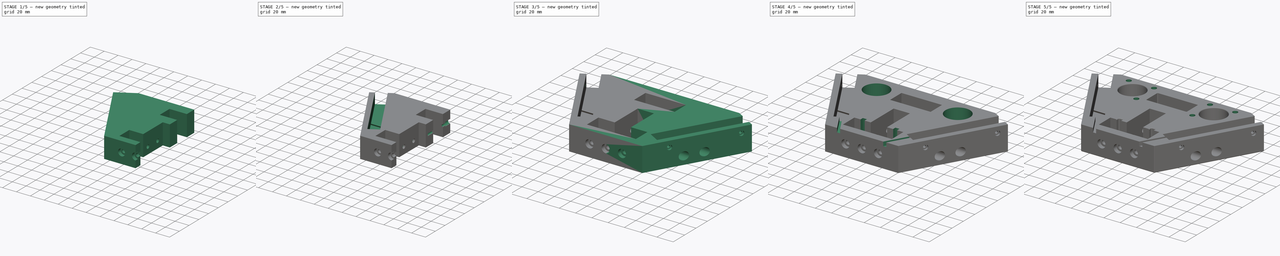
[diagram: build sequence overview — one tinted view per stage of 5, left to right]
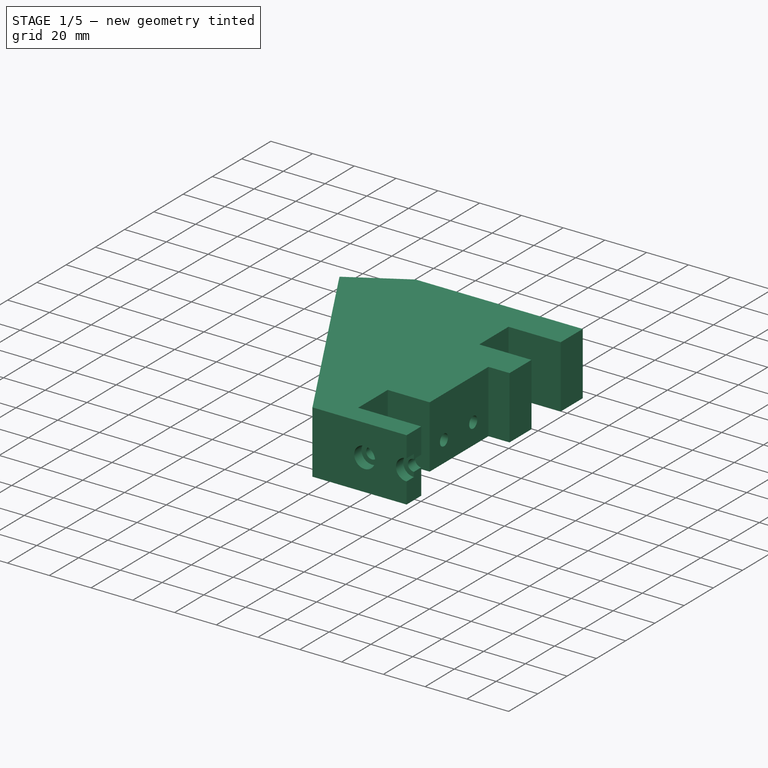
[diagram: stage 1 of 5 — iso view after this stage's code; geometry added in this stage tinted green]
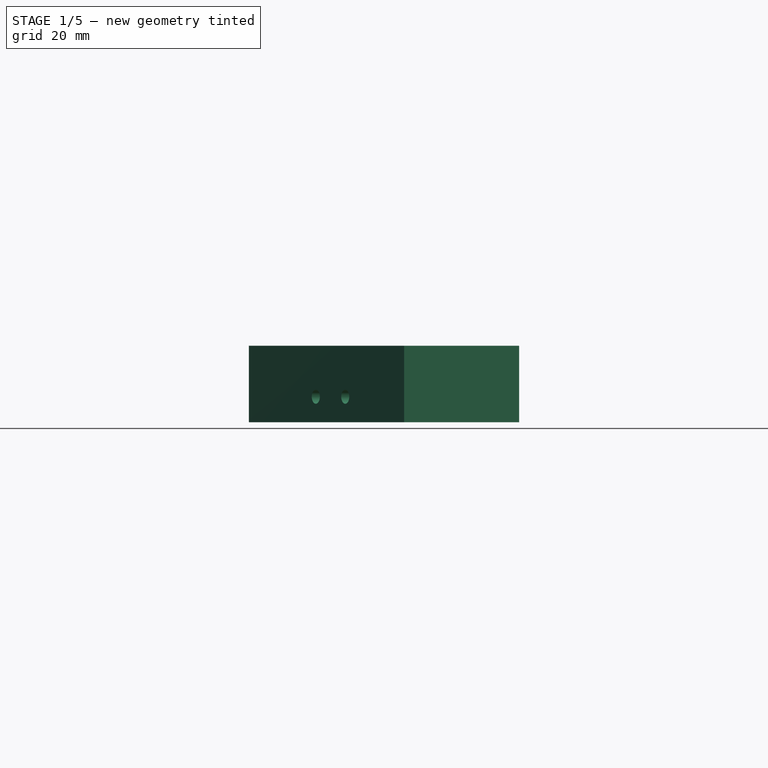
[diagram: stage 1 of 5 — front view after this stage's code; geometry added in this stage tinted green]
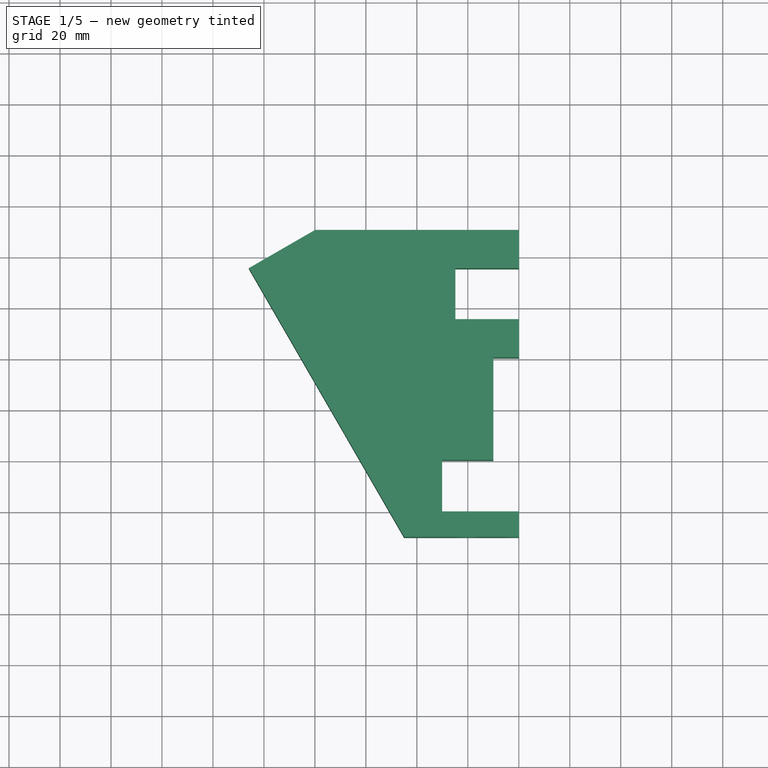
[diagram: stage 1 of 5 — top view after this stage's code; geometry added in this stage tinted green]
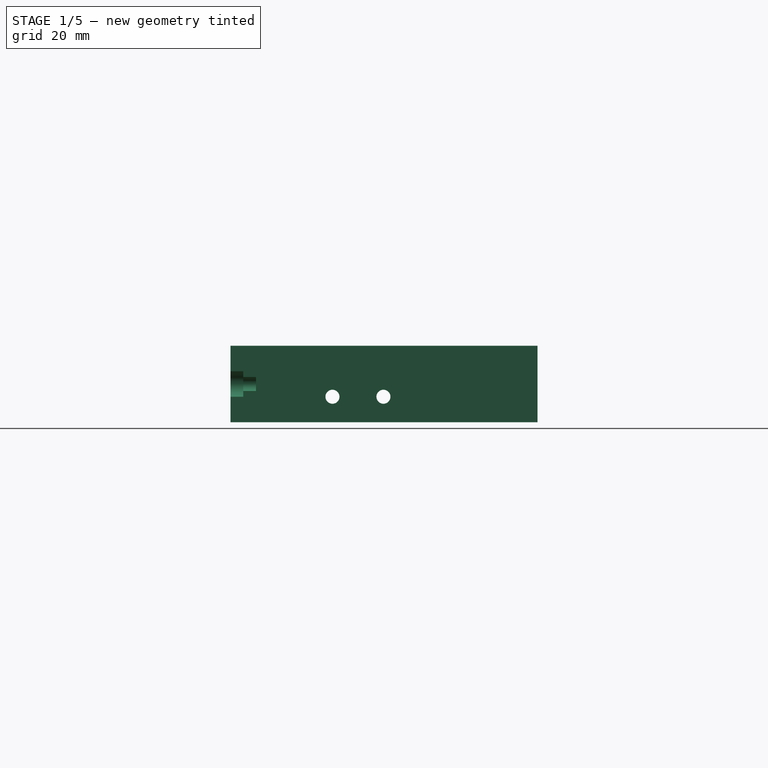
[diagram: stage 1 of 5 — right view after this stage's code; geometry added in this stage tinted green]
FCSTD DOCUMENT  (FreeCAD 2022.407R26244 +4693 (Git))
Label: topCorner
License: All rights reserved
LicenseURL: http://en.wikipedia.org/wiki/All_rights_reserved
objects: Sketcher::SketchObject×10, PartDesign::Hole×6, PartDesign::Mirrored×4, PartDesign::Pocket×3, PartDesign::Pad×1, PartDesign::Fillet×1, PartDesign::Body×1
note: 56 computed .brp shape members not serialized (recipe doc carries the construction recipe); baked Part::Feature solids carry a one-line shape summary decoded from their .brp

FEATURE [Sketcher::SketchObject] Sketch
  FullyConstrained = true
  MapMode = 5
  Support = -> [XY_Plane001]
  TreeRank = 0
  sketch-geometry (15):
    g0: LineSegment StartX=-10 StartY=60.4 StartZ=0 EndX=0.1 EndY=60.4 EndZ=0
    g1: LineSegment StartX=0.1 StartY=0 StartZ=0 EndX=-30.1 EndY=0 EndZ=0
    g2: LineSegment StartX=-30.1 StartY=0 StartZ=0 EndX=-30.1 EndY=20.2 EndZ=0
    g3: LineSegment StartX=-30.1 StartY=20.2 StartZ=0 EndX=-10 EndY=20.2 EndZ=0
    g4: LineSegment StartX=-10 StartY=20.2 StartZ=0 EndX=-10 EndY=60.4 EndZ=0
    g5: LineSegment StartX=-45 StartY=-10 StartZ=0 EndX=0.1 EndY=-10 EndZ=0
    g6: LineSegment StartX=-45 StartY=-10 StartZ=0 EndX=-105.881 EndY=95.4486 EndZ=0
    g7: LineSegment StartX=-105.881 StartY=95.4486 StartZ=0 EndX=-79.9 EndY=110.449 EndZ=0
    g8: LineSegment StartX=-79.9 StartY=110.449 StartZ=0 EndX=0.1 EndY=110.449 EndZ=0
    g9: LineSegment StartX=-24.9 StartY=95.4 StartZ=0 EndX=0.1 EndY=95.4 EndZ=0
    g10: LineSegment StartX=0.1 StartY=75.4 StartZ=0 EndX=-24.9 EndY=75.4 EndZ=0
    g11: LineSegment StartX=-24.9 StartY=75.4 StartZ=0 EndX=-24.9 EndY=95.4 EndZ=0
    g12: LineSegment StartX=0.1 StartY=110.449 StartZ=0 EndX=0.1 EndY=95.4 EndZ=0
    g13: LineSegment StartX=0.1 StartY=75.4 StartZ=0 EndX=0.1 EndY=60.4 EndZ=0
    g14: LineSegment StartX=0.1 StartY=0 StartZ=0 EndX=0.1 EndY=-10 EndZ=0
  constraints (46):
    c: Horizontal(g0)
    c: Horizontal(g1)
    c: Coincident(g1,g2)
    c: Vertical(g2)
    c: Coincident(g2,g3)
    c: Horizontal(g3)
    c: Coincident(g3,g4)
    c: Coincident(g4,g0)
    c: Vertical(g4)
    c: DistanceX(g3,g3) = 20.1
    c: DistanceY(g4,g4) = 40.2
    c: DistanceY(g2,g2) = 20.2
    c: DistanceY(g1) = 0
    c: DistanceX(g1) = -30.1
    c: Horizontal(g5)
    c: Coincident(g5,g6)
    c: Angle(g5,g6) = 2.0944
    c: DistanceY(g5,g1) = 10
    c: DistanceX(g5,g1) = 14.9
    c: Coincident(g6,g7)
    c: Coincident(g7,g8)
    c: Horizontal(g8)
    c: Perpendicular(g6,g7)
    c: Coincident(g10,g11)
    c: Coincident(g11,g9)
    c: DistanceY(g11,g11) = 20
    c: DistanceY(g0,g10) = 15
    c: Vertical(g12)
    c: Coincident(g8,g12)
    c: PointOnObject(g0,g12)
    c: PointOnObject(g1,g12)
    c: Coincident(g5,g14)
    c: Coincident(g12,g9)
    c: Coincident(g13,g10)
    c: Tangent(g12,g13)
    c: PointOnObject(g13,g0)
    c: PointOnObject(g14,g1)
    c: Tangent(g13,g14)
    c: DistanceX(g10,g10) = 25
    c: DistanceX(g0,g0) = 10.1
    c: Horizontal(g10)
    c: Horizontal(g9)
    c: Vertical(g11)
    c: Distance(g7) = 30  'top_corner_extrusion_face_width'
    c: Angle(g7,g8) = 2.61799
    c: DistanceX(g8,g8) = 80  'topCorner_flat_width'
FEATURE [PartDesign::Pad] Pad
  AddSubType = 0
  CheckUpToFaceLimits = true
  ClaimChildren = false
  Direction = (0,0,1)
  Fit = 0
  FitJoin = 0
  InnerFit = 0
  InnerFitJoin = 0
  InnerTaperAngle = 0
  InnerTaperAngleRev = 0
  Length = 30
  Length2 = 100
  NewSolid = false
  Profile = -> Sketch
  Refine = true
  Suppress = false
  TreeRank = 0
  Type = 0
  _ProfileBasedVersion = 0
FEATURE [Sketcher::SketchObject] Sketch001
  FullyConstrained = true
  MapMode = 5
  Placement = pos=(0,-10,0) rot=(1,0,0;1.5708rad)
  Support = -> [Pad]
  TreeRank = 0
  sketch-geometry (2):
    g0: Circle CenterX=0 CenterY=15 CenterZ=0 NormalX=0 NormalY=0 NormalZ=1 AngleXU=0 Radius=2.5
    g1: Circle CenterX=-20 CenterY=15 CenterZ=0 NormalX=0 NormalY=0 NormalZ=1 AngleXU=0 Radius=2.5
  constraints (6):
    c: PointOnObject(g0,g-2)
    c: Radius(g1) = 2.5
    c: Equal(g1,g0)
    c: DistanceX(g1,g0) = 20
    c: DistanceY(g0) = 15
    c: Horizontal(g0,g1)
FEATURE [PartDesign::Hole] Hole
  AddSubType = 1
  BaseFeature = -> Pad
  ClaimChildren = false
  CustomThreadClearance = 0
  Depth = 25
  DepthType = 0
  Diameter = 5.5
  DrillForDepth = false
  DrillPoint = 1
  DrillPointAngle = 118
  Fit = 0
  FitJoin = 0
  HoleCutCountersinkAngle = 90
  HoleCutCustomValues = false
  HoleCutDepth = 5
  HoleCutDiameter = 10
  HoleCutType = 1
  InnerFit = 0
  InnerFitJoin = 0
  ModelThread = false
  NewSolid = false
  Profile = -> Sketch001
  Refine = true
  Suppress = false
  Tapered = false
  TaperedAngle = 90
  ThreadClass = 0
  ThreadDepth = 23.5
  ThreadDepthType = 0
  ThreadDirection = 0
  ThreadFit = 0
  ThreadSize = 13
  ThreadType = 1
  Threaded = false
  TreeRank = 0
  UseCustomThreadClearance = false
  _ProfileBasedVersion = 0
FEATURE [Sketcher::SketchObject] Sketch002
  AttachmentOffset = pos=(20,30,-94) rot=(1,0,0;3.14159rad)
  FullyConstrained = true
  MapMode = 5
  Placement = pos=(-94,20,30) rot=(0.57735,0.57735,-0.57735;4.18879rad)
  Support = -> [YZ_Plane001]
  TreeRank = 0
  sketch-geometry (2):
    g0: Circle CenterX=10 CenterY=20 CenterZ=0 NormalX=0 NormalY=0 NormalZ=1 AngleXU=0 Radius=2.5
    g1: Circle CenterX=30 CenterY=20 CenterZ=0 NormalX=0 NormalY=0 NormalZ=1 AngleXU=0 Radius=2.5
  constraints (6):
    c: Radius(g1) = 2.5
    c: Equal(g1,g0)
    c: DistanceX(g0,g1) = 20
    c: DistanceY(g0) = 20
    c: DistanceX(g0) = 10
    c: Horizontal(g0,g1)
FEATURE [PartDesign::Hole] Hole001  label="Holes for M5 screws into 2040"
  AddSubType = 1
  BaseFeature = -> Hole
  ClaimChildren = false
  CustomThreadClearance = 0
  Depth = 25
  DepthType = 1
  Diameter = 5.5
  DrillForDepth = false
  DrillPoint = 0
  DrillPointAngle = 118
  Fit = 0
  FitJoin = 0
  HoleCutCountersinkAngle = 90
  HoleCutCustomValues = false
  HoleCutDepth = 3
  HoleCutDiameter = 10
  HoleCutType = 1
  InnerFit = 0
  InnerFitJoin = 0
  ModelThread = false
  NewSolid = false
  Profile = -> Sketch002
  Refine = true
  Suppress = false
  Tapered = false
  TaperedAngle = 90
  ThreadClass = 0
  ThreadDepth = 23.5
  ThreadDepthType = 0
  ThreadDirection = 0
  ThreadFit = 0
  ThreadSize = 13
  ThreadType = 1
  Threaded = false
  TreeRank = 0
  UseCustomThreadClearance = false
  _ProfileBasedVersion = 0
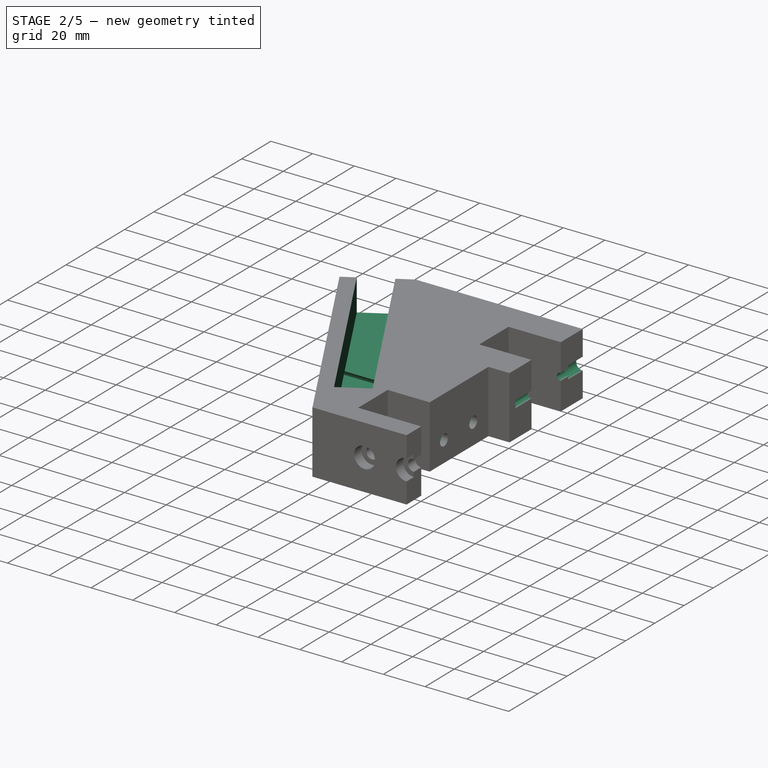
[diagram: stage 2 of 5 — iso view after this stage's code; geometry added in this stage tinted green]
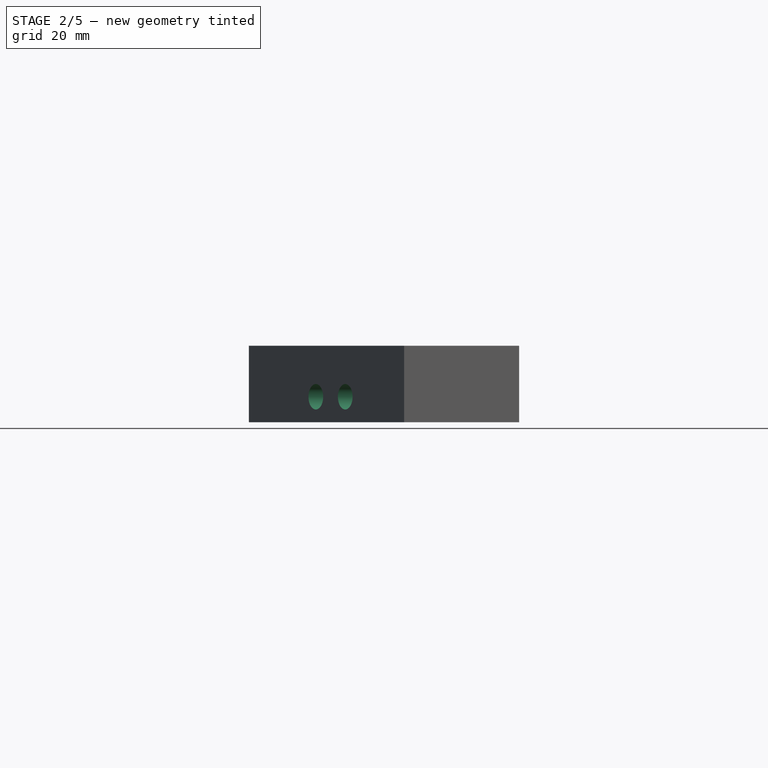
[diagram: stage 2 of 5 — front view after this stage's code; geometry added in this stage tinted green]
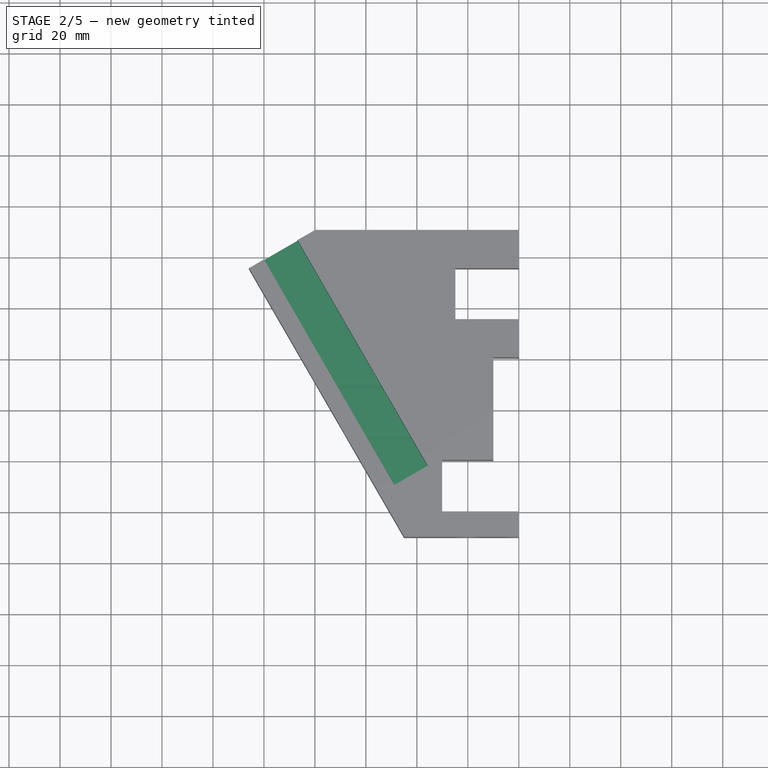
[diagram: stage 2 of 5 — top view after this stage's code; geometry added in this stage tinted green]
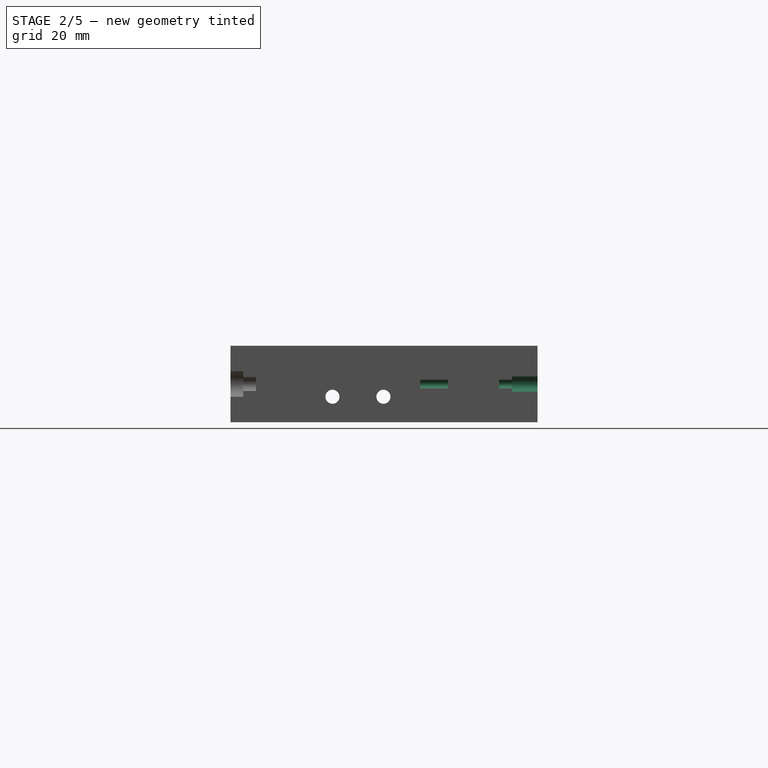
[diagram: stage 2 of 5 — right view after this stage's code; geometry added in this stage tinted green]
FEATURE [Sketcher::SketchObject] Sketch003
  AttachmentOffset = pos=(20,0,-3) rot=(0,0,1;0rad)
  FullyConstrained = true
  MapMode = 5
  Placement = pos=(-13,20,0) rot=(0.57735,0.57735,0.57735;2.0944rad)
  Support = -> [Hole001]
  TreeRank = 0
  sketch-geometry (2):
    g0: Circle CenterX=10 CenterY=10 CenterZ=0 NormalX=0 NormalY=0 NormalZ=1 AngleXU=0 Radius=2.5
    g1: Circle CenterX=30 CenterY=10 CenterZ=0 NormalX=0 NormalY=0 NormalZ=1 AngleXU=0 Radius=2.5
  constraints (6):
    c: Radius(g1) = 2.5
    c: Equal(g1,g0)
    c: DistanceX(g0,g1) = 20
    c: DistanceY(g0) = 10
    c: DistanceX(g0) = 10
    c: Horizontal(g0,g1)
FEATURE [PartDesign::Hole] Hole002  label="M5 mounts for 2040"
  AddSubType = 1
  BaseFeature = -> Hole001
  ClaimChildren = false
  CustomThreadClearance = 0
  Depth = 25
  DepthType = 1
  Diameter = 10
  DrillForDepth = false
  DrillPoint = 0
  DrillPointAngle = 118
  Fit = 0
  FitJoin = 0
  HoleCutCountersinkAngle = 90
  HoleCutCustomValues = false
  HoleCutDepth = 0
  HoleCutDiameter = 10.1
  HoleCutType = 0
  InnerFit = 0
  InnerFitJoin = 0
  ModelThread = false
  NewSolid = false
  Profile = -> Sketch003
  Refine = true
  Suppress = false
  Tapered = false
  TaperedAngle = 90
  ThreadClass = 0
  ThreadDepth = 23.5
  ThreadDepthType = 0
  ThreadDirection = 0
  ThreadFit = 0
  ThreadSize = 0
  ThreadType = 0
  Threaded = false
  TreeRank = 0
  UseCustomThreadClearance = false
  _ProfileBasedVersion = 0
FEATURE [Sketcher::SketchObject] Sketch004
  ExternalGeometry = -> [Hole002]
  FullyConstrained = true
  MapMode = 5
  Placement = pos=(-67.8006,117.434,0) rot=(-0.186157,0.694747,0.694747;3.50969rad)
  Support = -> [Hole002]
  TreeRank = 0
  sketch-geometry (4):
    g0: LineSegment StartX=21.9674 StartY=30 StartZ=0 EndX=37.1674 EndY=30 EndZ=0
    g1: LineSegment StartX=37.1674 StartY=30 StartZ=0 EndX=37.1674 EndY=14.8 EndZ=0
    g2: LineSegment StartX=37.1674 StartY=14.8 StartZ=0 EndX=21.9674 EndY=14.8 EndZ=0
    g3: LineSegment StartX=21.9674 StartY=14.8 StartZ=0 EndX=21.9674 EndY=30 EndZ=0
  constraints (12):
    c: Coincident(g0,g1)
    c: Coincident(g1,g2)
    c: Coincident(g2,g3)
    c: Coincident(g3,g0)
    c: Horizontal(g0)
    c: Horizontal(g2)
    c: Vertical(g1)
    c: Vertical(g3)
    c: Equal(g0,g3)
    c: DistanceY(g3,g3) = 15.2
    c: DistanceX(g-4,g0) = 6
    c: PointOnObject(g0,g-4)
FEATURE [PartDesign::Pocket] Pocket  label="OpenBeam Mounts"
  AddSubType = 1
  BaseFeature = -> Hole002
  CheckUpToFaceLimits = true
  ClaimChildren = false
  Fit = 0
  FitJoin = 0
  InnerFit = 0
  InnerFitJoin = 0
  InnerTaperAngle = 0
  InnerTaperAngleRev = 0
  Length = 102.21
  Length2 = 100
  NewSolid = false
  Profile = -> Sketch004
  Refine = true
  Suppress = false
  TreeRank = 0
  Type = 0
  _ProfileBasedVersion = 0
  _Version = 0
FEATURE [Sketcher::SketchObject] Sketch005
  FullyConstrained = true
  MapMode = 5
  Placement = pos=(0,110.449,0) rot=(0,0.707107,0.707107;3.14159rad)
  Support = -> [Pocket]
  TreeRank = 0
  sketch-geometry (1):
    g0: Circle CenterX=0 CenterY=15 CenterZ=0 NormalX=0 NormalY=0 NormalZ=1 AngleXU=0 Radius=1.5
  constraints (3):
    c: PointOnObject(g0,g-2)
    c: Radius(g0) = 1.5
    c: DistanceY(g0) = 15
FEATURE [PartDesign::Hole] Hole003  label="pulley mounting hole"
  AddSubType = 1
  BaseFeature = -> Pocket
  ClaimChildren = false
  CustomThreadClearance = 0
  Depth = 46
  DepthType = 0
  Diameter = 3.4
  DrillForDepth = false
  DrillPoint = 0
  DrillPointAngle = 118
  Fit = 0
  FitJoin = 0
  HoleCutCountersinkAngle = 90
  HoleCutCustomValues = false
  HoleCutDepth = 10
  HoleCutDiameter = 6
  HoleCutType = 1
  InnerFit = 0
  InnerFitJoin = 0
  ModelThread = false
  NewSolid = false
  Profile = -> Sketch005
  Refine = true
  Suppress = false
  Tapered = false
  TaperedAngle = 90
  ThreadClass = 0
  ThreadDepth = 23.5
  ThreadDepthType = 0
  ThreadDirection = 0
  ThreadFit = 0
  ThreadSize = 9
  ThreadType = 1
  Threaded = false
  TreeRank = 0
  UseCustomThreadClearance = false
  _ProfileBasedVersion = 0
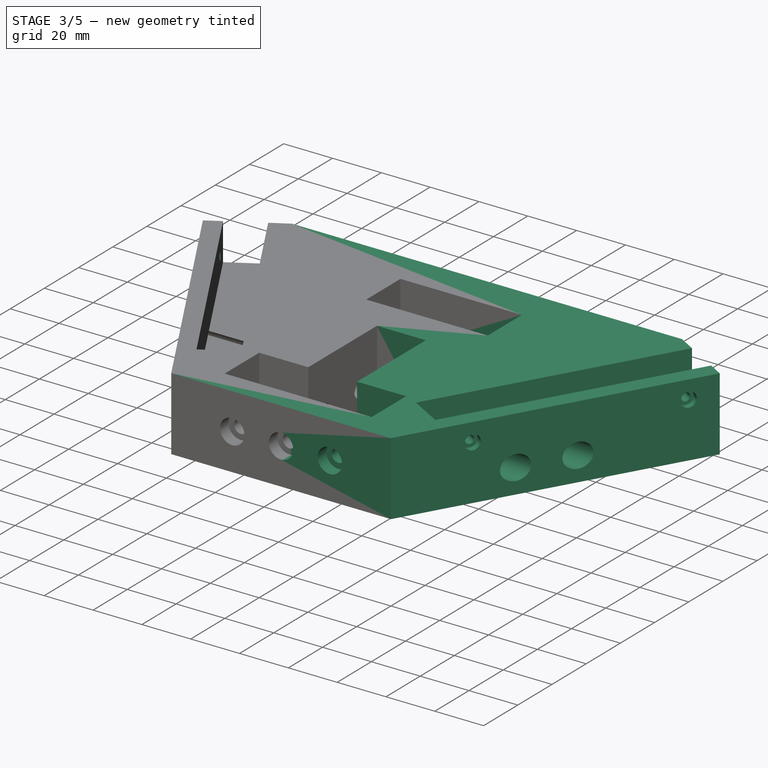
[diagram: stage 3 of 5 — iso view after this stage's code; geometry added in this stage tinted green]
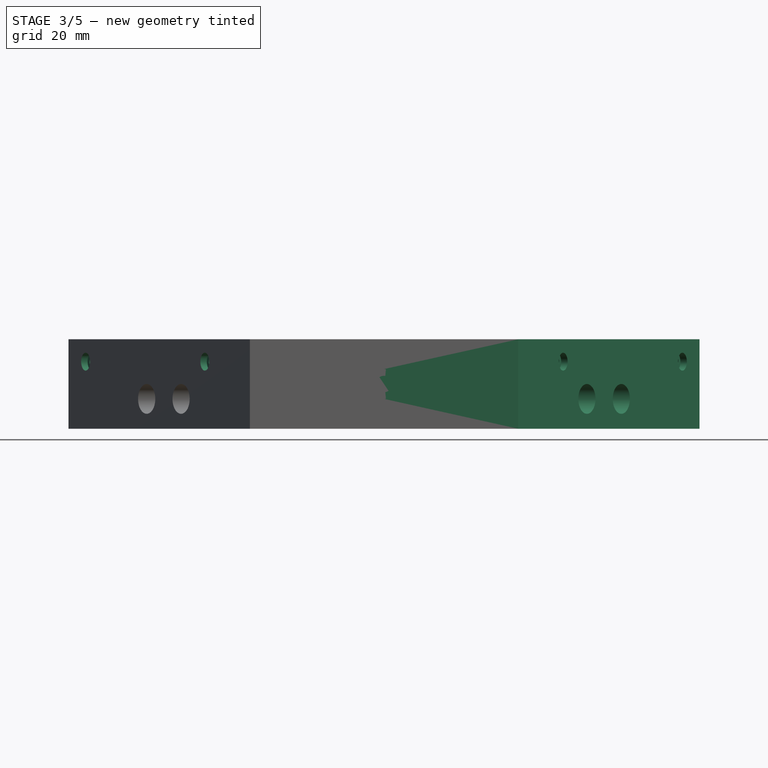
[diagram: stage 3 of 5 — front view after this stage's code; geometry added in this stage tinted green]
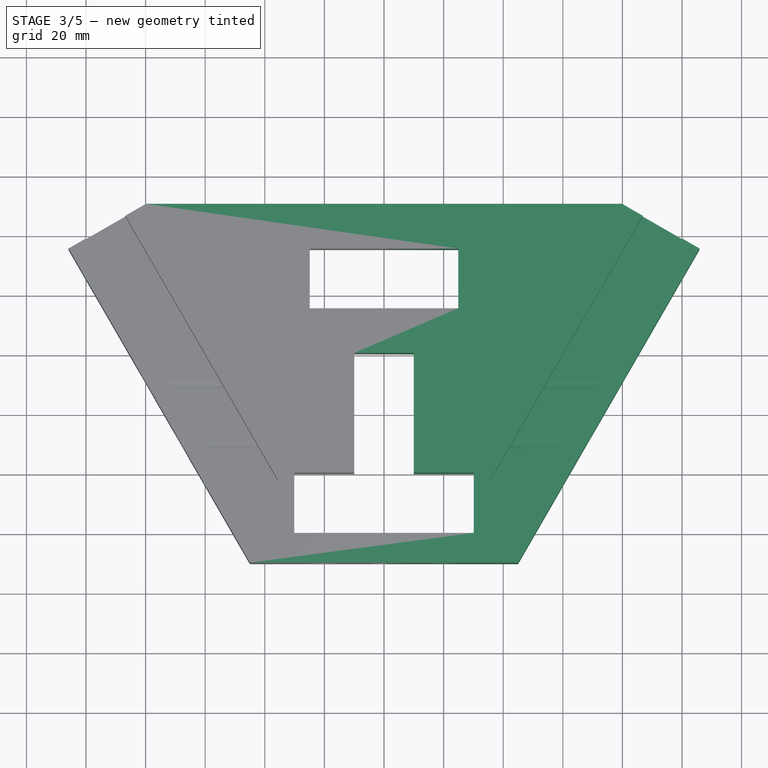
[diagram: stage 3 of 5 — top view after this stage's code; geometry added in this stage tinted green]
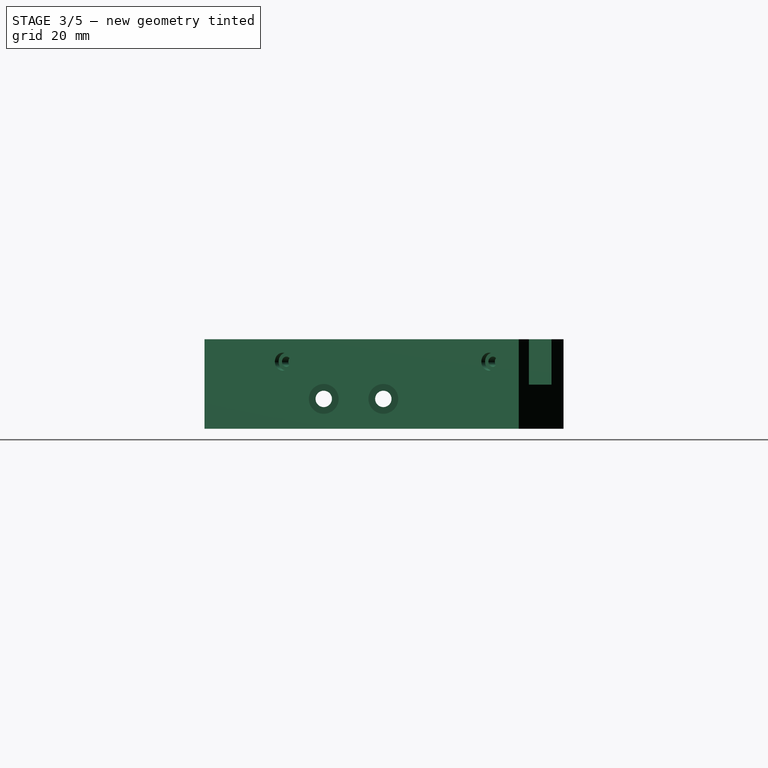
[diagram: stage 3 of 5 — right view after this stage's code; geometry added in this stage tinted green]
FEATURE [PartDesign::Mirrored] Mirrored
  AddSubType = 0
  BaseFeature = -> Hole003
  CopyShape = true
  MirrorPlane = -> YZ_Plane001
  NewSolid = false
  OriginalSubs = -> [Pad,Hole,Hole001,Hole002,Pocket,Hole003]
  Originals = -> [Pad,Hole,Hole001,Hole002,Pocket,Hole003]
  ParallelTransform = true
  Refine = true
  SubTransform = true
  Suppress = false
  TreeRank = 0
  _Version = 0
FEATURE [Sketcher::SketchObject] Sketch006
  ExternalGeometry = -> [Hole003]
  FullyConstrained = true
  MapMode = 5
  Placement = pos=(-38.0801,-21.9856,0) rot=(0.774597,-0.447214,-0.447214;1.82348rad)
  Support = -> [Hole003]
  TreeRank = 0
  sketch-geometry (2):
    g0: Circle CenterX=-124.101 CenterY=22.5 CenterZ=0 NormalX=0 NormalY=0 NormalZ=1 AngleXU=0 Radius=1.5
    g1: Circle CenterX=-44.1013 CenterY=22.5 CenterZ=0 NormalX=0 NormalY=0 NormalZ=1 AngleXU=0 Radius=1.5
  constraints (6):
    c: Radius(g1) = 1.5
    c: Equal(g1,g0)
    c: DistanceY(g0,g-3) = 7.5
    c: DistanceX(g-3,g0) = 11.5
    c: DistanceX(g0,g1) = 80
    c: Horizontal(g0,g1)
FEATURE [PartDesign::Hole] Hole004  label="OpenBeam mounting holes"
  AddSubType = 1
  BaseFeature = -> Mirrored
  ClaimChildren = false
  CustomThreadClearance = 0
  Depth = 15
  DepthType = 0
  Diameter = 3.4
  DrillForDepth = false
  DrillPoint = 1
  DrillPointAngle = 118
  Fit = 0
  FitJoin = 0
  HoleCutCountersinkAngle = 90
  HoleCutCustomValues = false
  HoleCutDepth = 2.5
  HoleCutDiameter = 6
  HoleCutType = 1
  InnerFit = 0
  InnerFitJoin = 0
  ModelThread = false
  NewSolid = false
  Profile = -> Sketch006
  Refine = true
  Suppress = false
  Tapered = false
  TaperedAngle = 90
  ThreadClass = 0
  ThreadDepth = 23.5
  ThreadDepthType = 0
  ThreadDirection = 0
  ThreadFit = 0
  ThreadSize = 9
  ThreadType = 1
  Threaded = false
  TreeRank = 0
  UseCustomThreadClearance = false
  _ProfileBasedVersion = 0
FEATURE [PartDesign::Mirrored] Mirrored001
  AddSubType = 0
  BaseFeature = -> Hole004
  CopyShape = true
  MirrorPlane = -> YZ_Plane001
  NewSolid = false
  OriginalSubs = -> [Hole004]
  Originals = -> [Hole004]
  ParallelTransform = true
  Refine = true
  SubTransform = true
  Suppress = false
  TreeRank = 0
  _Version = 0
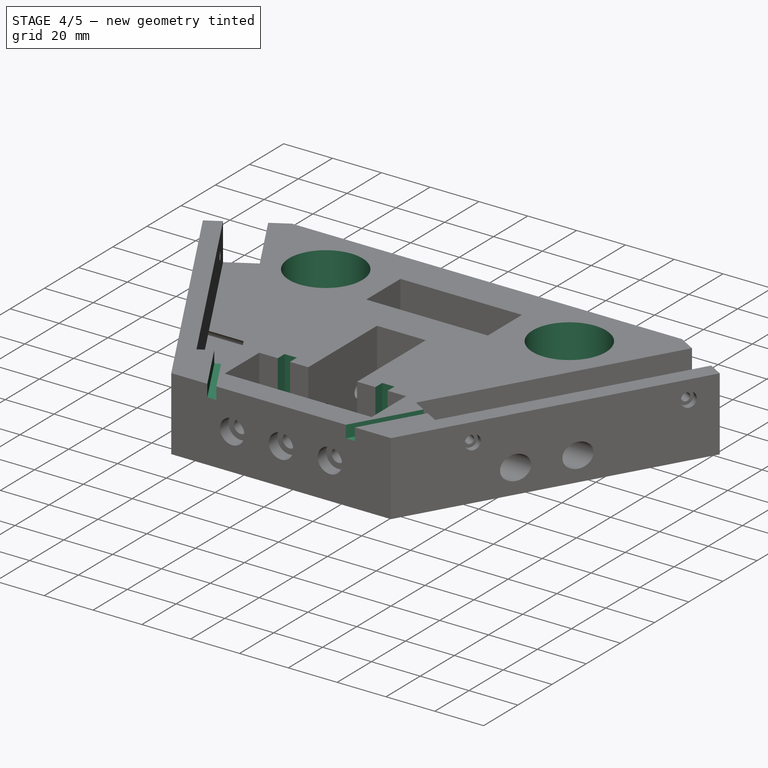
[diagram: stage 4 of 5 — iso view after this stage's code; geometry added in this stage tinted green]
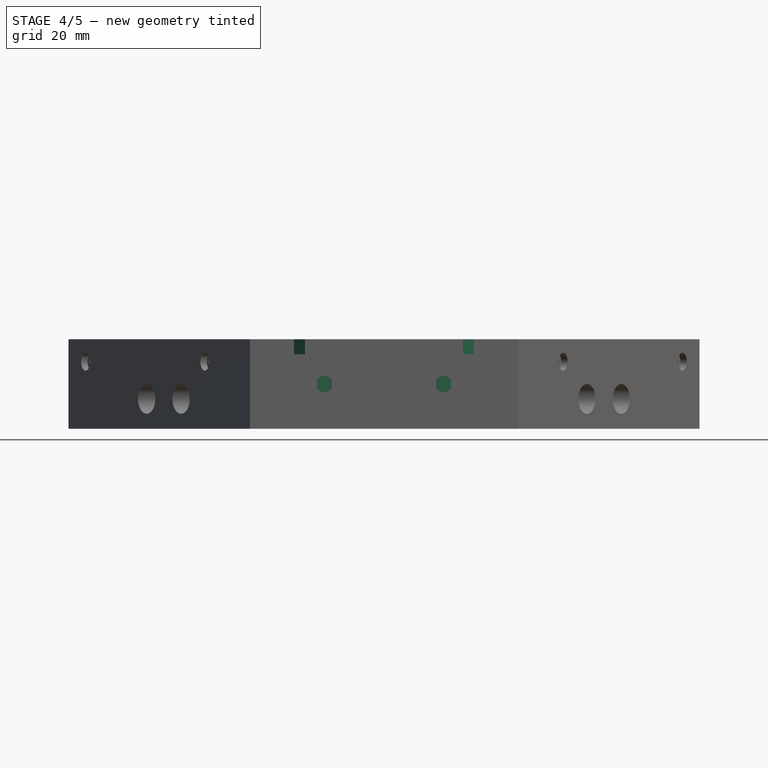
[diagram: stage 4 of 5 — front view after this stage's code; geometry added in this stage tinted green]
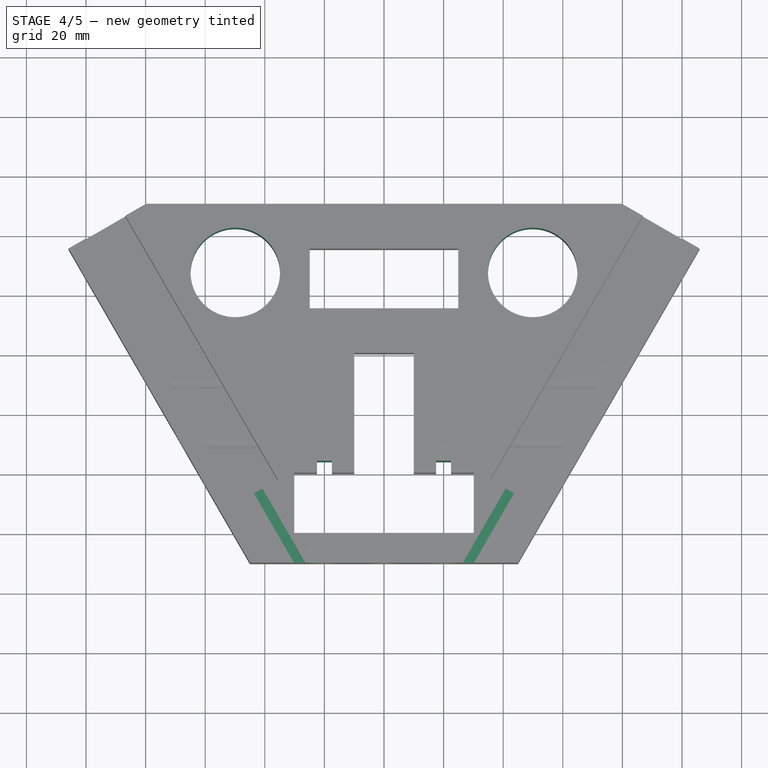
[diagram: stage 4 of 5 — top view after this stage's code; geometry added in this stage tinted green]
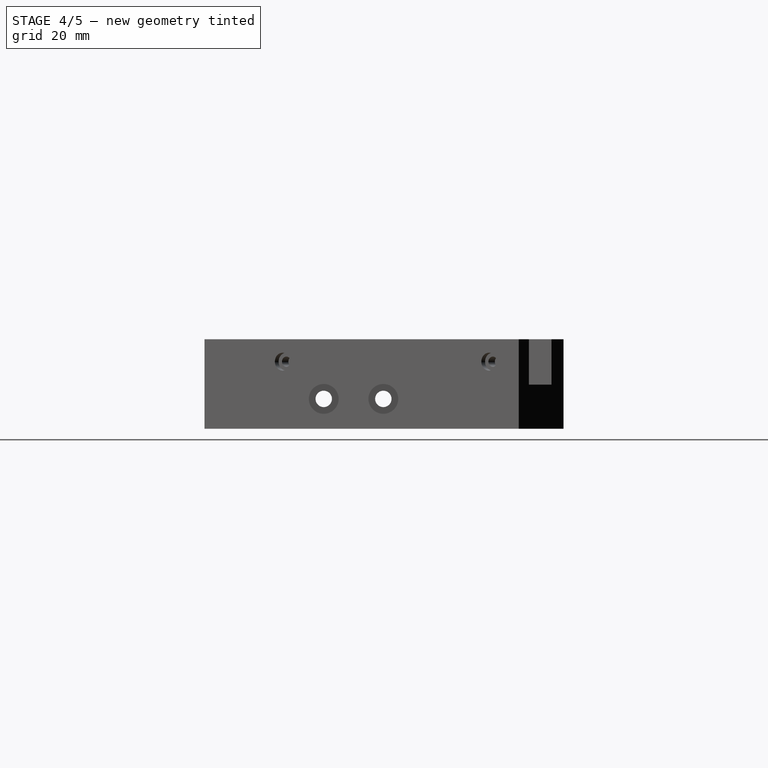
[diagram: stage 4 of 5 — right view after this stage's code; geometry added in this stage tinted green]
FEATURE [Sketcher::SketchObject] Sketch007
  ExternalGeometry = -> [Mirrored001]
  FullyConstrained = true
  MapMode = 5
  Placement = pos=(-3.3e-15,-2.3e-15,30) rot=(0,0,1;0rad)
  Support = -> [Mirrored001]
  TreeRank = 0
  sketch-geometry (10):
    g0: Circle CenterX=49.9 CenterY=87.4 CenterZ=0 NormalX=0 NormalY=0 NormalZ=1 AngleXU=0 Radius=15
    g1: Circle CenterX=-49.9 CenterY=87.4 CenterZ=0 NormalX=0 NormalY=0 NormalZ=1 AngleXU=0 Radius=15
    g2: LineSegment StartX=-22.5 StartY=24.2 StartZ=0 EndX=-17.5 EndY=24.2 EndZ=0
    g3: LineSegment StartX=-17.5 StartY=24.2 StartZ=0 EndX=-17.5 EndY=20.2 EndZ=0
    g4: LineSegment StartX=-17.5 StartY=20.2 StartZ=0 EndX=-22.5 EndY=20.2 EndZ=0
    g5: LineSegment StartX=-22.5 StartY=20.2 StartZ=0 EndX=-22.5 EndY=24.2 EndZ=0
    g6: LineSegment StartX=17.5 StartY=24.2 StartZ=0 EndX=22.5 EndY=24.2 EndZ=0
    g7: LineSegment StartX=22.5 StartY=24.2 StartZ=0 EndX=22.5 EndY=20.2 EndZ=0
    g8: LineSegment StartX=22.5 StartY=20.2 StartZ=0 EndX=17.5 EndY=20.2 EndZ=0
    g9: LineSegment StartX=17.5 StartY=20.2 StartZ=0 EndX=17.5 EndY=24.2 EndZ=0
  constraints (27):
    c: Radius(g1) = 15
    c: Equal(g1,g0)
    c: Symmetric(g0,g1,g-2)
    c: Coincident(g2,g3)
    c: Coincident(g3,g4)
    c: Coincident(g4,g5)
    c: Coincident(g5,g2)
    c: Horizontal(g2)
    c: Horizontal(g4)
    c: Vertical(g3)
    c: Vertical(g5)
    c: Coincident(g6,g7)
    c: Coincident(g7,g8)
    c: Coincident(g8,g9)
    c: Coincident(g9,g6)
    c: Horizontal(g6)
    c: Horizontal(g8)
    c: Vertical(g7)
    c: Vertical(g9)
    c: Symmetric(g6,g2,g-2)
    c: Symmetric(g4,g7,g-2)
    c: DistanceX(g2,g2) = 5
    c: PointOnObject(g3,g-6)
    c: DistanceX(g-4,g8) = 7.5
    c: DistanceY(g9,g9) = 4
    c: DistanceX(g-3,g0) = 25
    c: DistanceY(g0,g-3) = 8
FEATURE [PartDesign::Pocket] Pocket001  label="Pass-through cabling/misc"
  AddSubType = 1
  BaseFeature = -> Mirrored001
  CheckUpToFaceLimits = true
  ClaimChildren = false
  Fit = 0
  FitJoin = 0
  InnerFit = 0
  InnerFitJoin = 0
  InnerTaperAngle = 0
  InnerTaperAngleRev = 0
  Length = 5
  Length2 = 100
  NewSolid = false
  Profile = -> Sketch007
  Refine = true
  Suppress = false
  TreeRank = 0
  Type = 1
  _ProfileBasedVersion = 0
  _Version = 0
FEATURE [Sketcher::SketchObject] Sketch008
  ExternalGeometry = -> [Pocket001]
  FullyConstrained = true
  MapMode = 5
  Placement = pos=(-16.6956,28.9177,2.08e-14) rot=(-0.186157,0.694747,0.694747;3.50969rad)
  Support = -> [Pocket001]
  TreeRank = 0
  sketch-geometry (6):
    g0: LineSegment StartX=27.9674 StartY=30 StartZ=0 EndX=31.1674 EndY=30 EndZ=0
    g1: LineSegment StartX=31.1674 StartY=30 StartZ=0 EndX=31.1674 EndY=25 EndZ=0
    g2: LineSegment StartX=31.1674 StartY=25 StartZ=0 EndX=27.9674 EndY=25 EndZ=0
    g3: LineSegment StartX=27.9674 StartY=25 StartZ=0 EndX=27.9674 EndY=30 EndZ=0
    g4: LineSegment [constr] StartX=21.9674 StartY=30 StartZ=0 EndX=29.5674 EndY=30 EndZ=0
    g5: LineSegment [constr] StartX=29.5674 StartY=30 StartZ=0 EndX=37.1674 EndY=30 EndZ=0
  constraints (16):
    c: Coincident(g0,g1)
    c: Coincident(g1,g2)
    c: Coincident(g2,g3)
    c: Coincident(g3,g0)
    c: Horizontal(g0)
    c: Horizontal(g2)
    c: Vertical(g1)
    c: Vertical(g3)
    c: Coincident(g4,g-3)
    c: Horizontal(g4)
    c: Coincident(g5,g4)
    c: Coincident(g5,g-3)
    c: Equal(g5,g4)
    c: DistanceY(g3,g3) = 5
    c: Symmetric(g0,g0,g4)
    c: DistanceX(g0,g0) = 3.2
FEATURE [PartDesign::Pocket] Pocket002
  AddSubType = 1
  BaseFeature = -> Pocket001
  CheckUpToFaceLimits = true
  ClaimChildren = false
  Fit = 0
  FitJoin = 0
  InnerFit = 0
  InnerFitJoin = 0
  InnerTaperAngle = 0
  InnerTaperAngleRev = 0
  Length = 5
  Length2 = 100
  NewSolid = false
  Profile = -> Sketch008
  Refine = true
  Suppress = false
  TreeRank = 0
  Type = 1
  _ProfileBasedVersion = 0
  _Version = 0
FEATURE [PartDesign::Mirrored] Mirrored002
  AddSubType = 0
  BaseFeature = -> Pocket002
  CopyShape = true
  MirrorPlane = -> YZ_Plane001
  NewSolid = false
  OriginalSubs = -> [Pocket002]
  Originals = -> [Pocket002]
  ParallelTransform = true
  Refine = true
  SubTransform = true
  Suppress = false
  TreeRank = 0
  _Version = 0
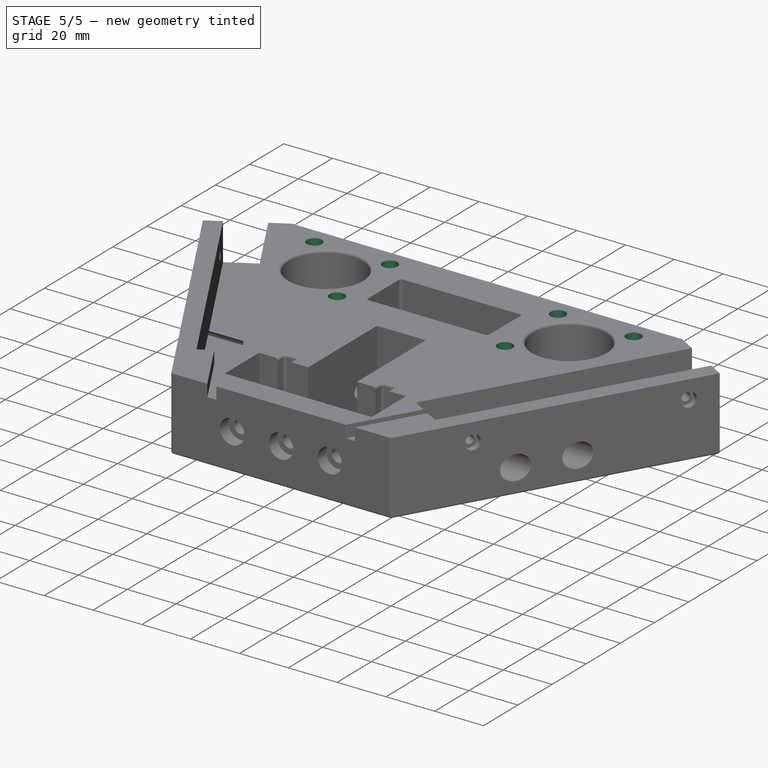
[diagram: stage 5 of 5 — iso view after this stage's code; geometry added in this stage tinted green]
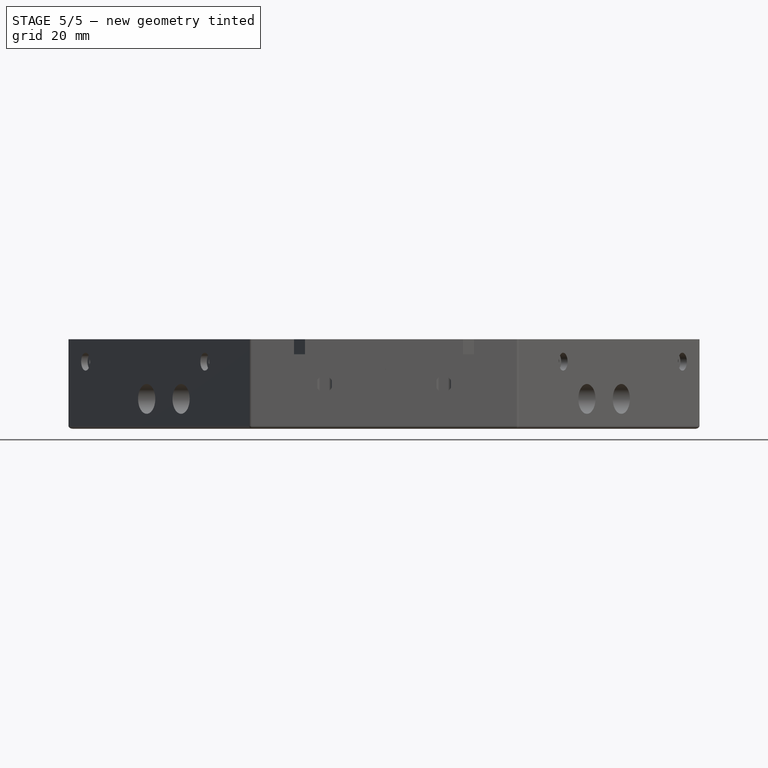
[diagram: stage 5 of 5 — front view after this stage's code; geometry added in this stage tinted green]
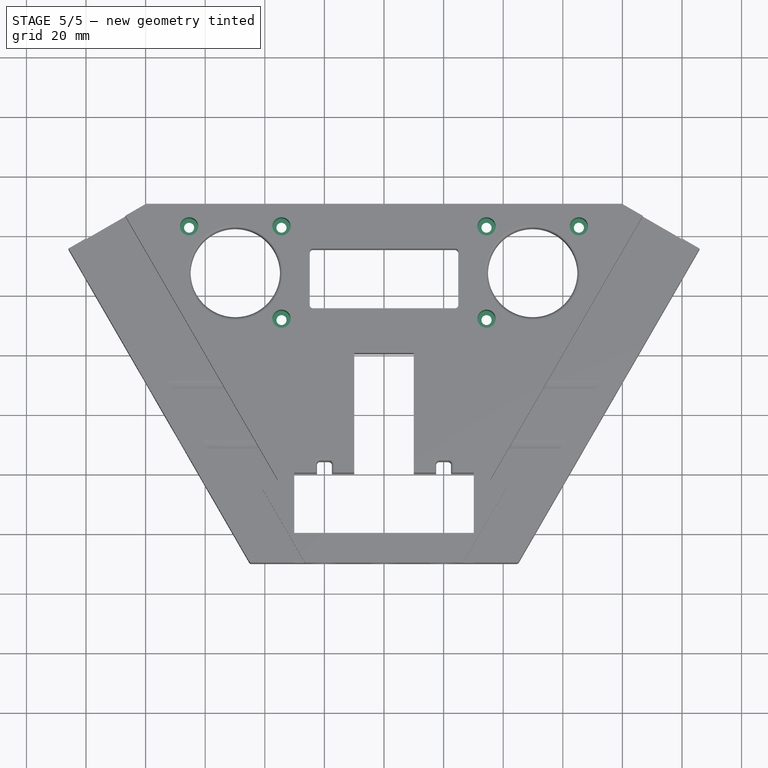
[diagram: stage 5 of 5 — top view after this stage's code; geometry added in this stage tinted green]
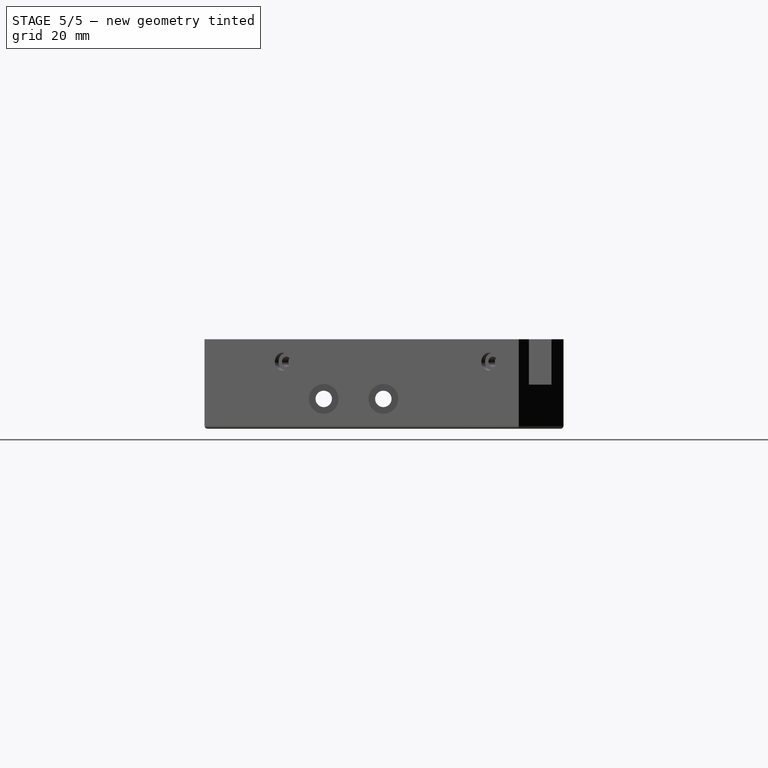
[diagram: stage 5 of 5 — right view after this stage's code; geometry added in this stage tinted green]
FEATURE [PartDesign::Fillet] Fillet
  AddSubType = 0
  Base = -> Mirrored002 [Edge153,Edge98,Edge96,Edge103,Edge154,Edge101,Edge105,Edge166,Edge165,Edge100,Edge108,Edge113,Edge24,Edge34,Edge51,Edge50,Edge52,Edge59,Edge58,Edge60,Edge63,Edge68,Edge43,Edge45,Edge23,Edge44,Edge46,Edge47,Edge64,Edge66,Edge67,Edge65,Edge177,Edge176,Edge169,Edge170]
  BaseFeature = -> Mirrored002
  NewSolid = false
  Radius = 1
  Refine = true
  SupportTransform = false
  Suppress = false
  TreeRank = 0
FEATURE [Sketcher::SketchObject] Sketch009
  ExternalGeometry = -> [Fillet]
  FullyConstrained = true
  MapMode = 5
  Placement = pos=(-3.3e-15,-2.3e-15,30) rot=(0,0,1;0rad)
  Support = -> [Fillet]
  TreeRank = 2
  sketch-geometry (7):
    g0: LineSegment [constr] StartX=-65.4 StartY=102.9 StartZ=0 EndX=-34.4 EndY=102.9 EndZ=0
    g1: LineSegment [constr] StartX=-34.4 StartY=102.9 StartZ=0 EndX=-34.4 EndY=71.9 EndZ=0
    g2: LineSegment [constr] StartX=-34.4 StartY=71.9 StartZ=0 EndX=-65.4 EndY=71.9 EndZ=0
    g3: LineSegment [constr] StartX=-65.4 StartY=71.9 StartZ=0 EndX=-65.4 EndY=102.9 EndZ=0
    g4: Circle CenterX=-65.4 CenterY=102.9 CenterZ=0 NormalX=0 NormalY=0 NormalZ=1 AngleXU=0 Radius=1.65
    g5: Circle CenterX=-34.4 CenterY=102.9 CenterZ=0 NormalX=0 NormalY=0 NormalZ=1 AngleXU=0 Radius=1.65
    g6: Circle CenterX=-34.4 CenterY=71.9 CenterZ=0 NormalX=0 NormalY=0 NormalZ=1 AngleXU=0 Radius=1.65
  constraints (17):
    c: Coincident(g0,g1)
    c: Coincident(g1,g2)
    c: Coincident(g2,g3)
    c: Coincident(g3,g0)
    c: Horizontal(g0)
    c: Horizontal(g2)
    c: Vertical(g1)
    c: Vertical(g3)
    c: Symmetric(g1,g0,g-3)
    c: Equal(g0,g1)
    c: DistanceX(g0,g0) = 31
    c: Coincident(g4,g0)
    c: Coincident(g5,g0)
    c: Coincident(g6,g1)
    c: Equal(g4,g5)
    c: Equal(g5,g6)
    c: Radius(g5) = 1.65
FEATURE [PartDesign::Hole] Hole005  label="Extruder stepper mounting holes"
  AddSubType = 1
  BaseFeature = -> Fillet
  ClaimChildren = false
  CustomThreadClearance = 0
  Depth = 25
  DepthType = 1
  Diameter = 3.4
  DrillForDepth = false
  DrillPoint = 1
  DrillPointAngle = 118
  Fit = 0
  FitJoin = 0
  HoleCutCountersinkAngle = 90
  HoleCutCustomValues = false
  HoleCutDepth = 26
  HoleCutDiameter = 6.1
  HoleCutType = 1
  InnerFit = 0
  InnerFitJoin = 0
  Linearize = true
  ModelThread = false
  NewSolid = false
  Profile = -> Sketch009
  Refine = true
  Suppress = false
  Tapered = false
  TaperedAngle = 90
  ThreadClass = 0
  ThreadDepth = 494.483
  ThreadDepthType = 0
  ThreadDirection = 0
  ThreadFit = 0
  ThreadSize = 9
  ThreadType = 1
  Threaded = false
  TreeRank = 3
  UseCustomThreadClearance = false
  _ProfileBasedVersion = 1
FEATURE [PartDesign::Mirrored] Mirrored003
  AddSubType = 0
  BaseFeature = -> Hole005
  CopyShape = false
  MirrorPlane = -> Sketch009 [V_Axis]
  NewSolid = false
  OriginalSubs = -> [Hole005]
  Originals = -> [Hole005]
  ParallelTransform = true
  Refine = true
  SubTransform = true
  Suppress = false
  TreeRank = 4
  _Version = 3
FEATURE [PartDesign::Body] Body  label="TopCorner"
  AutoGroupSolids = false
  ExportMode = 0
  Group = -> [Sketch,Pad,Sketch001,Hole,Sketch002,Hole001,Sketch003,Hole002,Sketch004,Pocket,Sketch005,Hole003,Mirrored,Sketch006,Hole004,Mirrored001,Sketch007,Pocket001,Sketch008,Pocket002,Mirrored002,Fillet,Sketch009,Hole005,Mirrored003]
  Origin = -> Origin001
  Tip = -> Mirrored003
  TreeRank = 5
  _ExportChildren = -> [Pad,Hole,Hole001,Hole002,Pocket,Hole003,Mirrored,Hole004,Mirrored001,Pocket001,Pocket002,Mirrored002,Fillet,Hole005,Mirrored003]
  _GroupVersion = 1
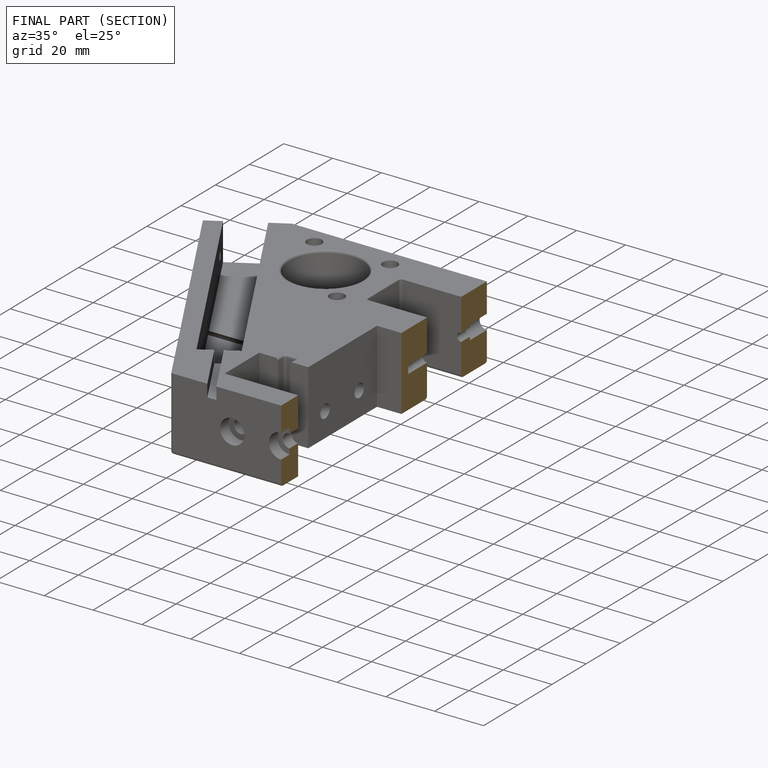
[diagram: finished part — half-section view (interior)]
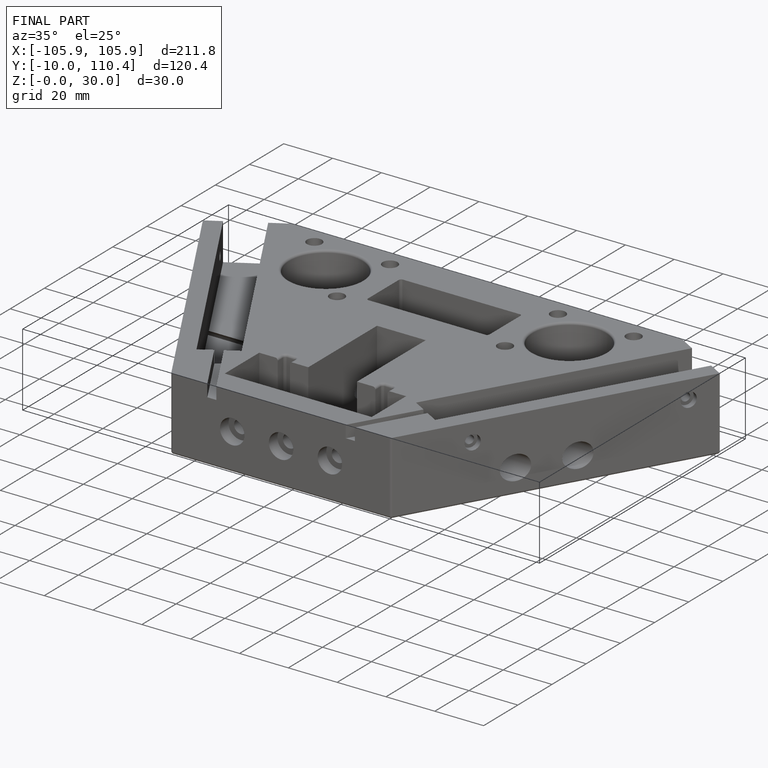
[diagram: finished part — iso view with bounding-box wireframe]
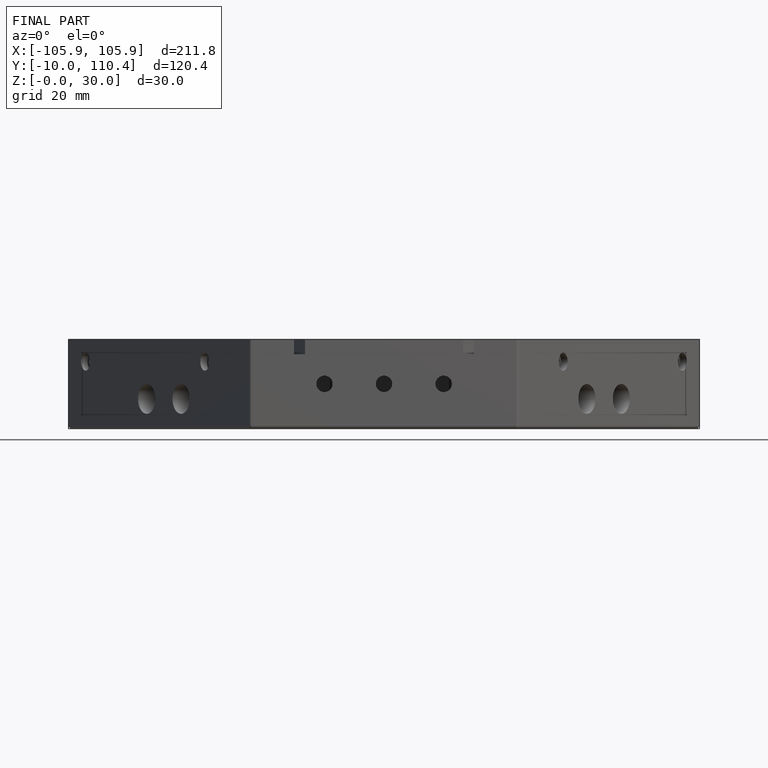
[diagram: finished part — front view with bounding-box wireframe]
